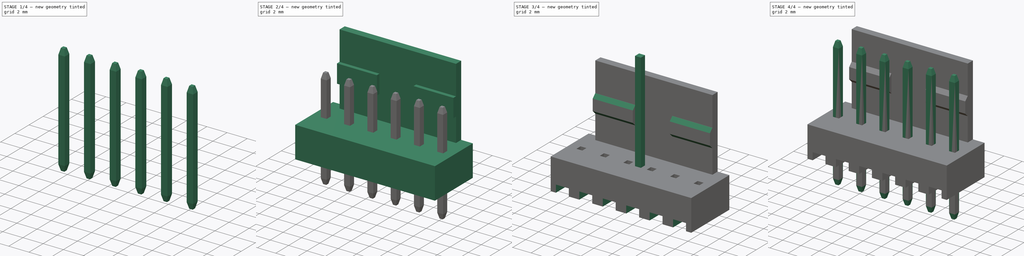
[diagram: build sequence overview — one tinted view per stage of 4, left to right]
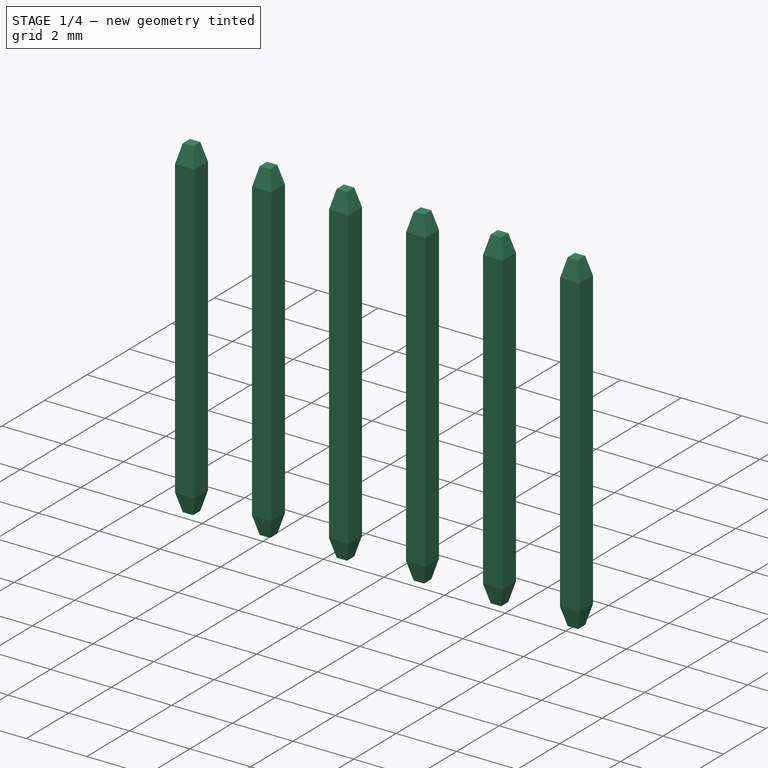
[diagram: stage 1 of 4 — iso view after this stage's code; geometry added in this stage tinted green]
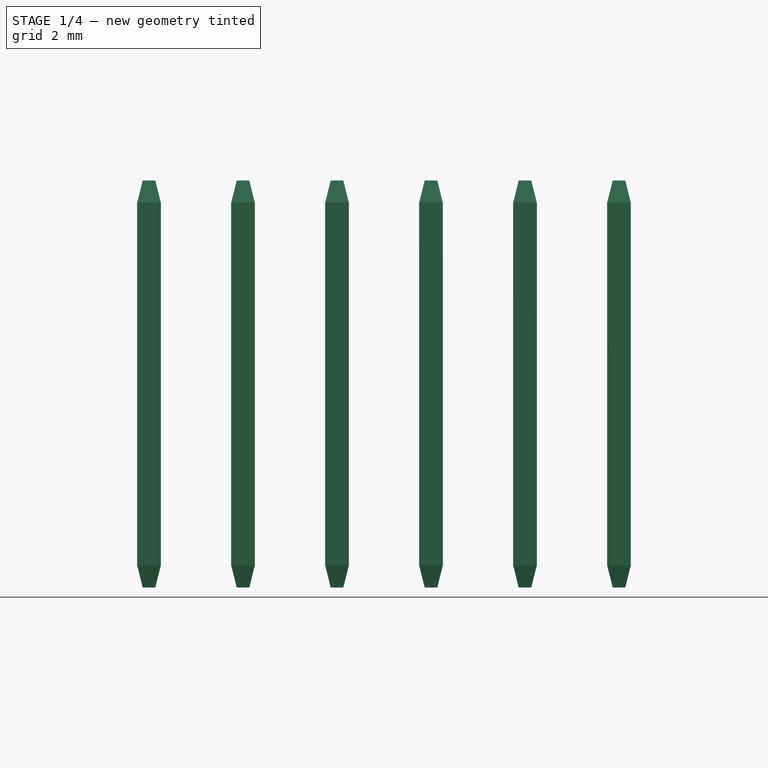
[diagram: stage 1 of 4 — front view after this stage's code; geometry added in this stage tinted green]
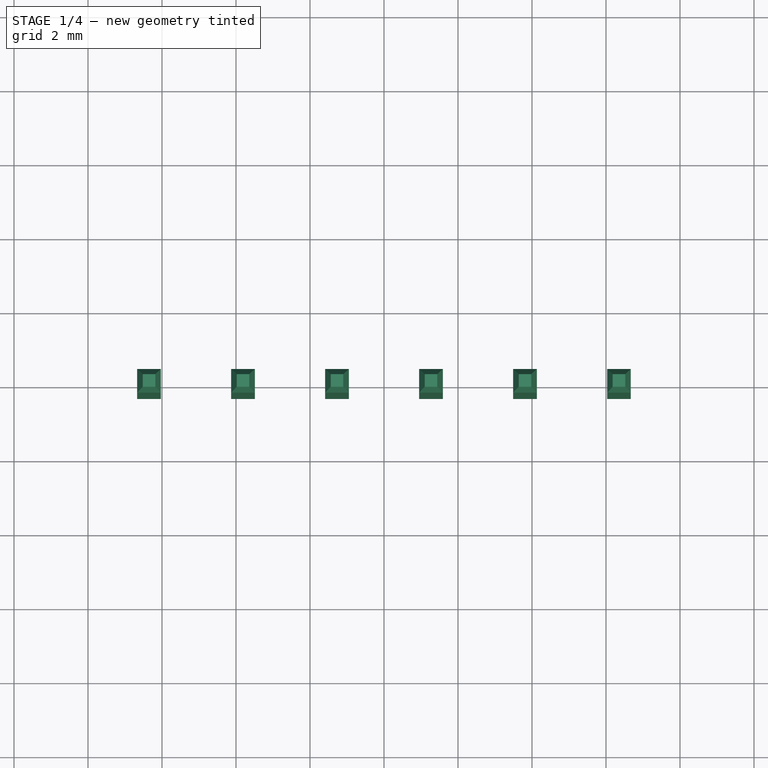
[diagram: stage 1 of 4 — top view after this stage's code; geometry added in this stage tinted green]
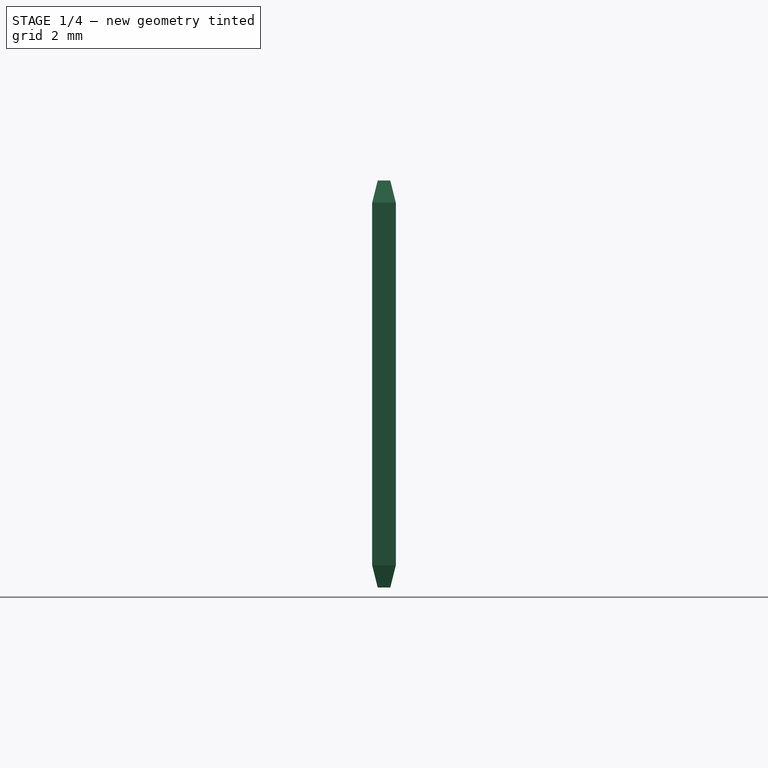
[diagram: stage 1 of 4 — right view after this stage's code; geometry added in this stage tinted green]
FCSTD DOCUMENT  (FreeCAD 0.16R6712 (Git))
Label: NS25-W6P
License: All rights reserved
LicenseURL: http://en.wikipedia.org/wiki/All_rights_reserved
objects: Sketcher::SketchObject×4, PartDesign::Pad×3, Part::Box×2, Part::Chamfer×2, Part::FeaturePython×2, PartDesign::Pocket×1, PartDesign::Chamfer×1, Part::Cut×1, Part::Compound×1
note: 21 computed .brp shape members not serialized (recipe doc carries the construction recipe); baked Part::Feature solids carry a one-line shape summary decoded from their .brp

FEATURE [Part::Box] Box001  label="Cube001"
  Height = 11
  Length = 0.64
  Placement = pos=(-0.32,-0.32,0) rot=(0,0,1;0rad)
  Width = 0.64
FEATURE [Part::Chamfer] Chamfer002  label="pin001"
  Base = -> Box001
  Edges = 8 edges: [Edge2 r1=0.6 r2=0.15,Edge4 r1=0.6 r2=0.15,Edge6 r1=0.6 r2=0.15,Edge8 r1=0.6 r2=0.15,Edge9 r1=0.6 r2=0.15,Edge10 r1=0.6 r2=0.15,Edge11 r1=0.6 r2=0.15,Edge12 r1=0.6 r2=0.15]
FEATURE [Part::FeaturePython] Array001  label="pins001"  # Draft array (typed FeaturePython)
  Angle = 360
  ArrayType = 0
  Axis = (0,0,1)
  Base = -> Chamfer002
  Center = (0,0,0)
  Fuse = false
  IntervalAxis = (0,0,0)
  IntervalX = (2.54,0,0)
  IntervalY = (0,2.54,0)
  IntervalZ = (0,0,0)
  NumberPolar = 1
  NumberX = 6
  NumberY = 1
  NumberZ = 1
  Placement = pos=(-6.35,0,-3.2) rot=(0,0,1;0rad)
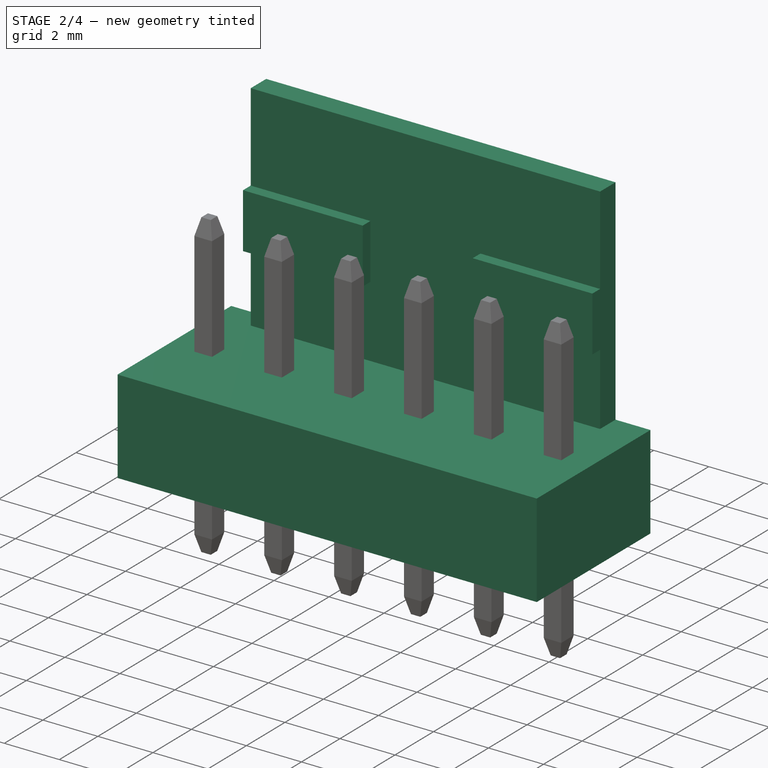
[diagram: stage 2 of 4 — iso view after this stage's code; geometry added in this stage tinted green]
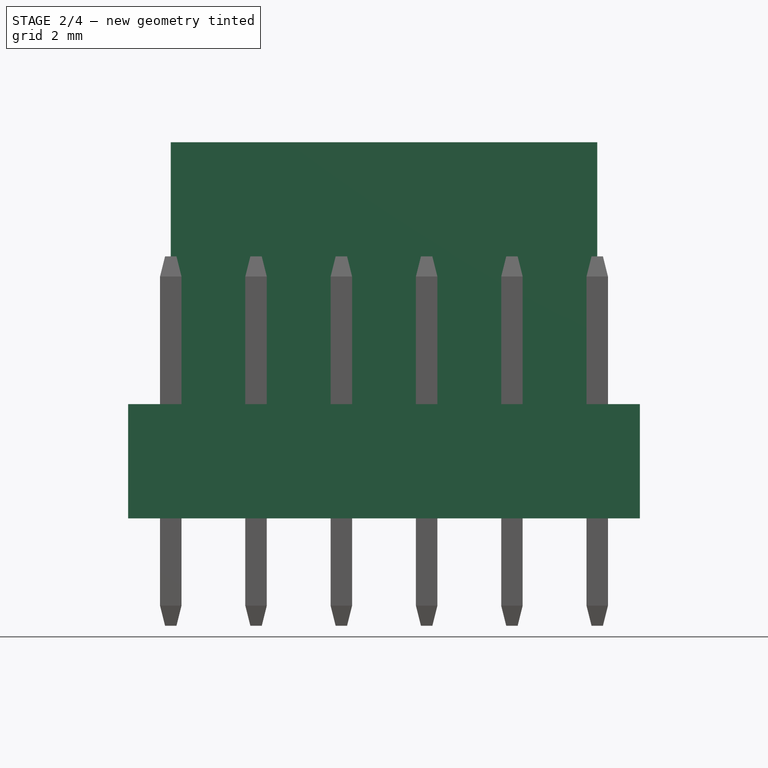
[diagram: stage 2 of 4 — front view after this stage's code; geometry added in this stage tinted green]
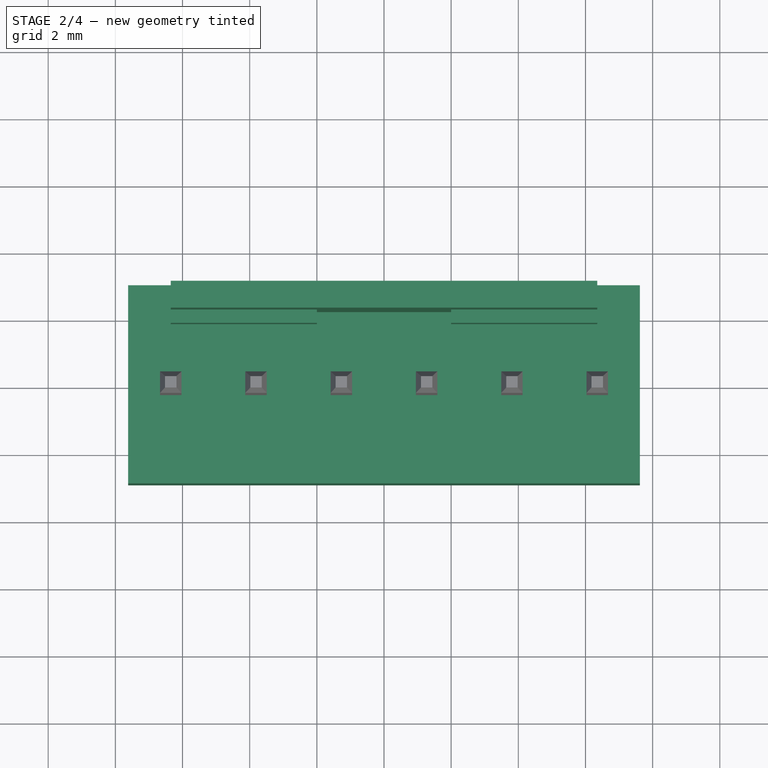
[diagram: stage 2 of 4 — top view after this stage's code; geometry added in this stage tinted green]
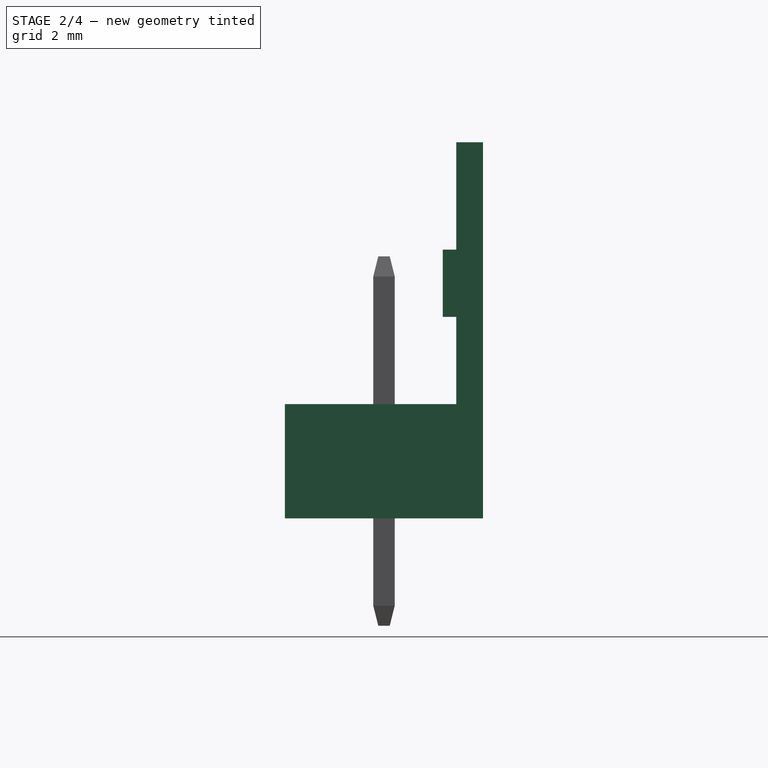
[diagram: stage 2 of 4 — right view after this stage's code; geometry added in this stage tinted green]
FEATURE [Sketcher::SketchObject] Sketch  label="podloze"
  sketch-geometry (4):
    g0: LineSegment StartX=-7.62 StartY=2.95 StartZ=0 EndX=7.62 EndY=2.95 EndZ=0
    g1: LineSegment StartX=7.62 StartY=2.95 StartZ=0 EndX=7.62 EndY=-2.95 EndZ=0
    g2: LineSegment StartX=7.62 StartY=-2.95 StartZ=0 EndX=-7.62 EndY=-2.95 EndZ=0
    g3: LineSegment StartX=-7.62 StartY=-2.95 StartZ=0 EndX=-7.62 EndY=2.95 EndZ=0
  constraints (12):
    c: Coincident(g0,g1)
    c: Coincident(g1,g2)
    c: Coincident(g2,g3)
    c: Coincident(g3,g0)
    c: Horizontal(g0)
    c: Horizontal(g2)
    c: Vertical(g1)
    c: Vertical(g3)
    c: Symmetric(g1,g2,g-2)
    c: Symmetric(g0,g1,g-1)
    c: DistanceY(g1,g1) = 5.9
    c: DistanceX(g2,g2) = 15.24
FEATURE [PartDesign::Pad] Pad  label="podloze001"
  Length = 3.4
  Length2 = 100
  Sketch = -> Sketch
  Type = 0
FEATURE [Sketcher::SketchObject] Sketch001  label="scianka"
  ExternalGeometry = -> [Pad]
  Placement = pos=(0,0,3.4) rot=(0,0,1;0rad)
  Support = -> Pad [Face6]
  sketch-geometry (4):
    g0: LineSegment StartX=-6.35 StartY=2.95 StartZ=0 EndX=6.35 EndY=2.95 EndZ=0
    g1: LineSegment StartX=6.35 StartY=2.95 StartZ=0 EndX=6.35 EndY=2.15 EndZ=0
    g2: LineSegment StartX=6.35 StartY=2.15 StartZ=0 EndX=-6.35 EndY=2.15 EndZ=0
    g3: LineSegment StartX=-6.35 StartY=2.15 StartZ=0 EndX=-6.35 EndY=2.95 EndZ=0
  constraints (12):
    c: Coincident(g0,g1)
    c: Coincident(g1,g2)
    c: Coincident(g2,g3)
    c: Coincident(g3,g0)
    c: Horizontal(g0)
    c: Horizontal(g2)
    c: Vertical(g1)
    c: Vertical(g3)
    c: PointOnObject(g0,g-3)
    c: Symmetric(g0,g0,g-2)
    c: DistanceY(g1,g1) = 0.8
    c: DistanceX(g0,g0) = 12.7
FEATURE [PartDesign::Pad] Pad001
  Length = 7.8
  Length2 = 100
  Sketch = -> Sketch001
  Type = 0
FEATURE [Sketcher::SketchObject] Sketch002
  ExternalGeometry = -> [Pad001]
  Placement = pos=(0,2.15,0) rot=(1,0,0;1.5708rad)
  Support = -> Pad001 [Face9]
  sketch-geometry (8):
    g0: LineSegment StartX=-2 StartY=8 StartZ=0 EndX=-6.35 EndY=8 EndZ=0
    g1: LineSegment StartX=-6.35 StartY=8 StartZ=0 EndX=-6.35 EndY=6 EndZ=0
    g2: LineSegment StartX=-6.35 StartY=6 StartZ=0 EndX=-2 EndY=6 EndZ=0
    g3: LineSegment StartX=-2 StartY=6 StartZ=0 EndX=-2 EndY=8 EndZ=0
    g4: LineSegment StartX=2 StartY=8 StartZ=0 EndX=6.35 EndY=8 EndZ=0
    g5: LineSegment StartX=6.35 StartY=8 StartZ=0 EndX=6.35 EndY=6 EndZ=0
    g6: LineSegment StartX=6.35 StartY=6 StartZ=0 EndX=2 EndY=6 EndZ=0
    g7: LineSegment StartX=2 StartY=6 StartZ=0 EndX=2 EndY=8 EndZ=0
  constraints (23):
    c: Coincident(g0,g1)
    c: Coincident(g1,g2)
    c: Coincident(g2,g3)
    c: Coincident(g3,g0)
    c: Horizontal(g0)
    c: Horizontal(g2)
    c: Vertical(g1)
    c: Vertical(g3)
    c: Coincident(g4,g5)
    c: Coincident(g5,g6)
    c: Coincident(g6,g7)
    c: Coincident(g7,g4)
    c: Horizontal(g4)
    c: Horizontal(g6)
    c: Vertical(g5)
    c: Vertical(g7)
    c: Symmetric(g2,g6,g-2)
    c: Equal(g3,g7)
    c: Equal(g6,g2)
    c: DistanceY(g1,g1) = 2
    c: DistanceY(g-1,g5) = 6
    c: PointOnObject(g4,g-3)
    c: DistanceX(g0,g4) = 4
FEATURE [PartDesign::Pad] Pad002
  Length = 0.4
  Length2 = 100
  Sketch = -> Sketch002
  Type = 0
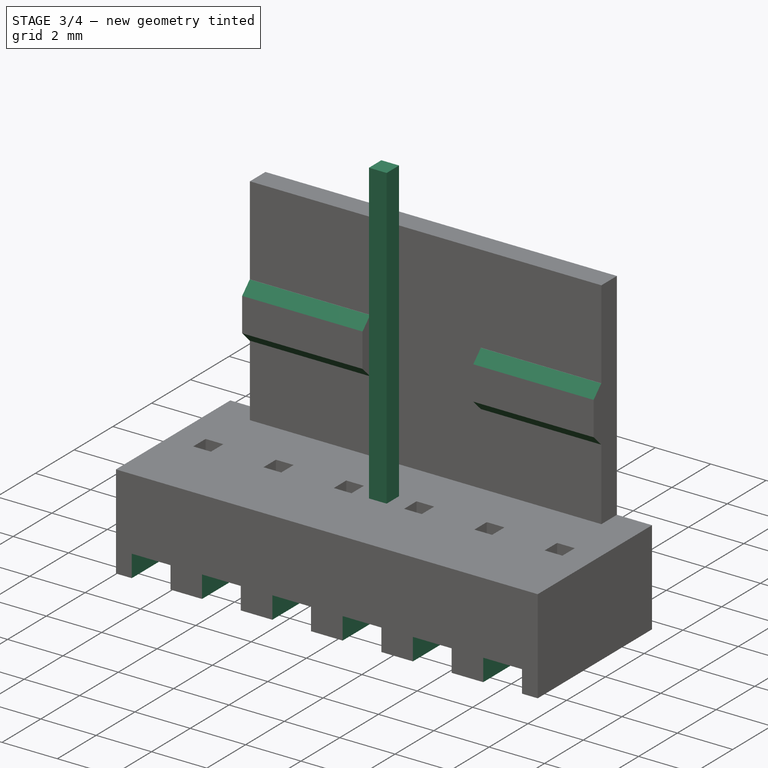
[diagram: stage 3 of 4 — iso view after this stage's code; geometry added in this stage tinted green]
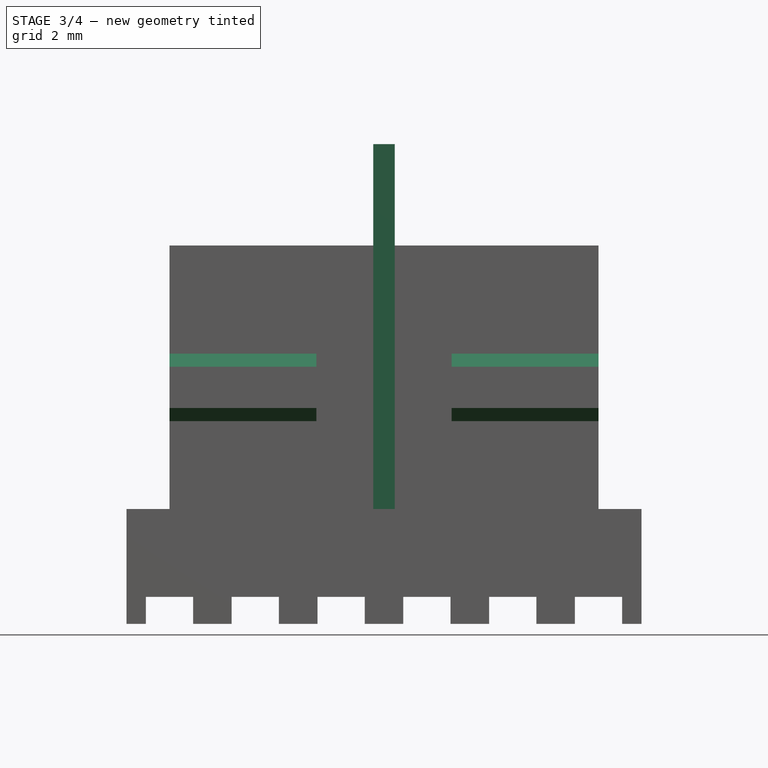
[diagram: stage 3 of 4 — front view after this stage's code; geometry added in this stage tinted green]
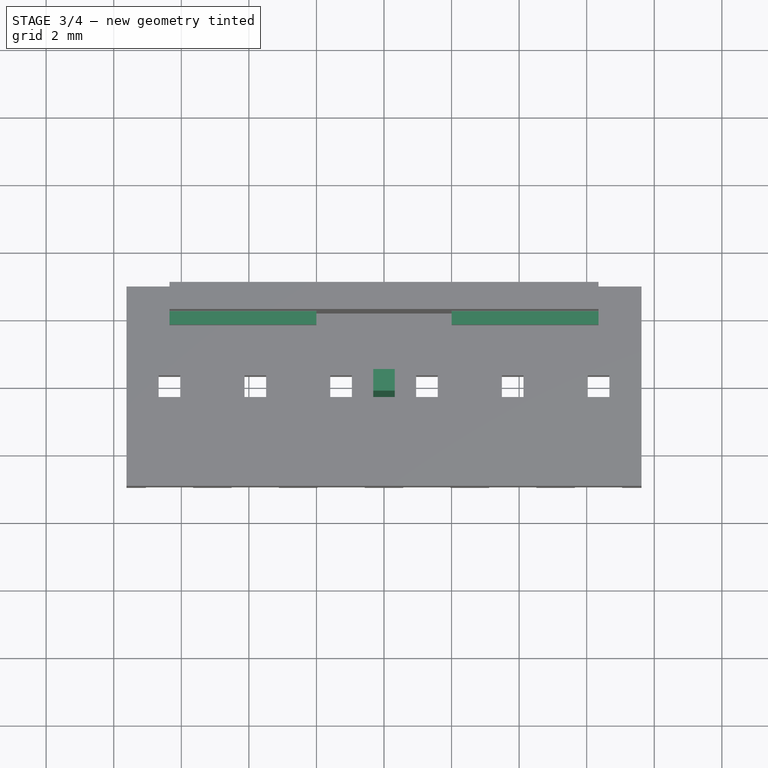
[diagram: stage 3 of 4 — top view after this stage's code; geometry added in this stage tinted green]
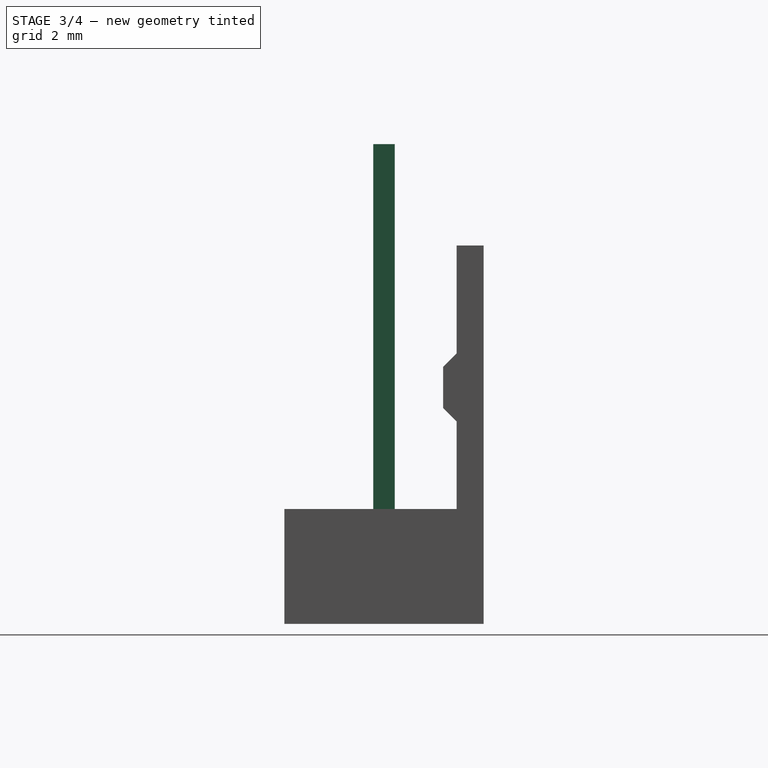
[diagram: stage 3 of 4 — right view after this stage's code; geometry added in this stage tinted green]
FEATURE [Part::Box] Box  label="Cube"
  Height = 14.2
  Length = 0.64
  Placement = pos=(-0.32,-0.32,0) rot=(0,0,1;0rad)
  Width = 0.64
FEATURE [Sketcher::SketchObject] Sketch003  label="wyciecia_spodu"
  Placement = pos=(0,0,0) rot=(1,0,0;3.14159rad)
  Support = -> Pad002 [Face4]
  sketch-geometry (30):
    g0: LineSegment StartX=-1.97 StartY=2.95 StartZ=0 EndX=-0.57 EndY=2.95 EndZ=0
    g1: LineSegment StartX=-0.57 StartY=2.95 StartZ=0 EndX=-0.57 EndY=-2.95 EndZ=0
    g2: LineSegment StartX=-0.57 StartY=-2.95 StartZ=0 EndX=-1.97 EndY=-2.95 EndZ=0
    g3: LineSegment StartX=-1.97 StartY=-2.95 StartZ=0 EndX=-1.97 EndY=2.95 EndZ=0
    g4: LineSegment [constr] StartX=-1.27 StartY=2.95 StartZ=0 EndX=-1.27 EndY=-2.95 EndZ=0
    g5: LineSegment StartX=-4.51 StartY=2.95 StartZ=0 EndX=-3.11 EndY=2.95 EndZ=0
    g6: LineSegment StartX=-3.11 StartY=2.95 StartZ=0 EndX=-3.11 EndY=-2.95 EndZ=0
    g7: LineSegment StartX=-3.11 StartY=-2.95 StartZ=0 EndX=-4.51 EndY=-2.95 EndZ=0
    g8: LineSegment StartX=-4.51 StartY=-2.95 StartZ=0 EndX=-4.51 EndY=2.95 EndZ=0
    g9: LineSegment [constr] StartX=-3.81 StartY=2.95 StartZ=0 EndX=-3.81 EndY=-2.95 EndZ=0
    g10: LineSegment StartX=-7.05 StartY=2.95 StartZ=0 EndX=-5.65 EndY=2.95 EndZ=0
    g11: LineSegment StartX=-5.65 StartY=2.95 StartZ=0 EndX=-5.65 EndY=-2.95 EndZ=0
    g12: LineSegment StartX=-5.65 StartY=-2.95 StartZ=0 EndX=-7.05 EndY=-2.95 EndZ=0
    g13: LineSegment StartX=-7.05 StartY=-2.95 StartZ=0 EndX=-7.05 EndY=2.95 EndZ=0
    g14: LineSegment [constr] StartX=-6.35 StartY=2.96069 StartZ=0 EndX=-6.35 EndY=-2.93931 EndZ=0
    g15: LineSegment StartX=5.65 StartY=2.95 StartZ=0 EndX=7.05 EndY=2.95 EndZ=0
    g16: LineSegment StartX=7.05 StartY=2.95 StartZ=0 EndX=7.05 EndY=-2.95 EndZ=0
    g17: LineSegment StartX=7.05 StartY=-2.95 StartZ=0 EndX=5.65 EndY=-2.95 EndZ=0
    g18: LineSegment StartX=5.65 StartY=-2.95 StartZ=0 EndX=5.65 EndY=2.95 EndZ=0
    g19: LineSegment [constr] StartX=6.35 StartY=2.92113 StartZ=0 EndX=6.35 EndY=-2.97887 EndZ=0
    g20: LineSegment StartX=3.11 StartY=2.95 StartZ=0 EndX=4.51 EndY=2.95 EndZ=0
    g21: LineSegment StartX=4.51 StartY=2.95 StartZ=0 EndX=4.51 EndY=-2.95 EndZ=0
    g22: LineSegment StartX=4.51 StartY=-2.95 StartZ=0 EndX=3.11 EndY=-2.95 EndZ=0
    g23: LineSegment StartX=3.11 StartY=-2.95 StartZ=0 EndX=3.11 EndY=2.95 EndZ=0
    g24: LineSegment [constr] StartX=3.81 StartY=2.92113 StartZ=0 EndX=3.81 EndY=-2.97887 EndZ=0
    g25: LineSegment StartX=0.57 StartY=2.95 StartZ=0 EndX=1.97 EndY=2.95 EndZ=0
    g26: LineSegment StartX=1.97 StartY=2.95 StartZ=0 EndX=1.97 EndY=-2.95 EndZ=0
    g27: LineSegment StartX=1.97 StartY=-2.95 StartZ=0 EndX=0.57 EndY=-2.95 EndZ=0
    g28: LineSegment StartX=0.57 StartY=-2.95 StartZ=0 EndX=0.57 EndY=2.95 EndZ=0
    g29: LineSegment [constr] StartX=1.27 StartY=2.95 StartZ=0 EndX=1.27 EndY=-2.96818 EndZ=0
  constraints (84):
    c: Coincident(g0,g1)
    c: Coincident(g1,g2)
    c: Coincident(g2,g3)
    c: Coincident(g3,g0)
    c: Horizontal(g0)
    c: Horizontal(g2)
    c: Vertical(g1)
    c: Vertical(g3)
    c: Vertical(g4)
    c: Symmetric(g1,g2,g4)
    c: DistanceX(g4,g-1) = 1.27
    c: Coincident(g5,g6)
    c: Coincident(g6,g7)
    c: Coincident(g7,g8)
    c: Coincident(g8,g5)
    c: Horizontal(g5)
    c: Horizontal(g7)
    c: Vertical(g6)
    c: Vertical(g8)
    c: Vertical(g9)
    c: Symmetric(g6,g7,g9)
    c: Coincident(g10,g11)
    c: Coincident(g11,g12)
    c: Coincident(g12,g13)
    c: Coincident(g13,g10)
    c: Horizontal(g10)
    c: Horizontal(g12)
    c: Vertical(g11)
    c: Vertical(g13)
    c: Vertical(g14)
    c: Symmetric(g11,g12,g14)
    c: DistanceX(g9,g4) = 2.54
    c: DistanceX(g14,g9) = 2.54
    c: Coincident(g15,g16)
    c: Coincident(g16,g17)
    c: Coincident(g17,g18)
    c: Coincident(g18,g15)
    c: Horizontal(g15)
    c: Horizontal(g17)
    c: Vertical(g16)
    c: Vertical(g18)
    c: Vertical(g19)
    c: Symmetric(g16,g17,g19)
    c: Coincident(g20,g21)
    c: Coincident(g21,g22)
    c: Coincident(g22,g23)
    c: Coincident(g23,g20)
    c: Horizontal(g20)
    c: Horizontal(g22)
    c: Vertical(g21)
    c: Vertical(g23)
    c: Vertical(g24)
    c: Symmetric(g21,g22,g24)
    c: Coincident(g25,g26)
    c: Coincident(g26,g27)
    c: Coincident(g27,g28)
    c: Coincident(g28,g25)
    c: Horizontal(g25)
    c: Horizontal(g27)
    c: Vertical(g26)
    c: Vertical(g28)
    c: Vertical(g29)
    c: Symmetric(g26,g27,g29)
    c: DistanceX(g24,g19) = 2.54
    c: DistanceX(g29,g24) = 2.54
    c: DistanceX(g-1,g29) = 1.27
    c: DistanceX(g15,g15) = 1.4
    c: Equal(g12,g7)
    c: Equal(g7,g2)
    c: Equal(g2,g27)
    c: Equal(g27,g22)
    c: Equal(g22,g17)
    c: Equal(g13,g8)
    c: Equal(g8,g3)
    c: Equal(g3,g28)
    c: Equal(g28,g23)
    c: Equal(g23,g18)
    c: Symmetric(g10,g11,g-1)
    c: Symmetric(g5,g6,g-1)
    c: Symmetric(g0,g1,g-1)
    c: Symmetric(g25,g26,g-1)
    c: Symmetric(g20,g21,g-1)
    c: Symmetric(g15,g16,g-1)
    c: DistanceY(g16,g16) = 5.9
FEATURE [PartDesign::Pocket] Pocket  label="spod_wyciecie"
  Length = 0.8
  Sketch = -> Sketch003
  Type = 0
FEATURE [PartDesign::Chamfer] Chamfer001  label="zaokraglone_blokady"
  Base = -> Pocket [Edge115,Edge111,Edge117,Edge122]
  Size = 0.39
FEATURE [Part::Cut] Cut  label="gniazdo-piny"
  Base = -> Chamfer001
  Tool = -> Array001
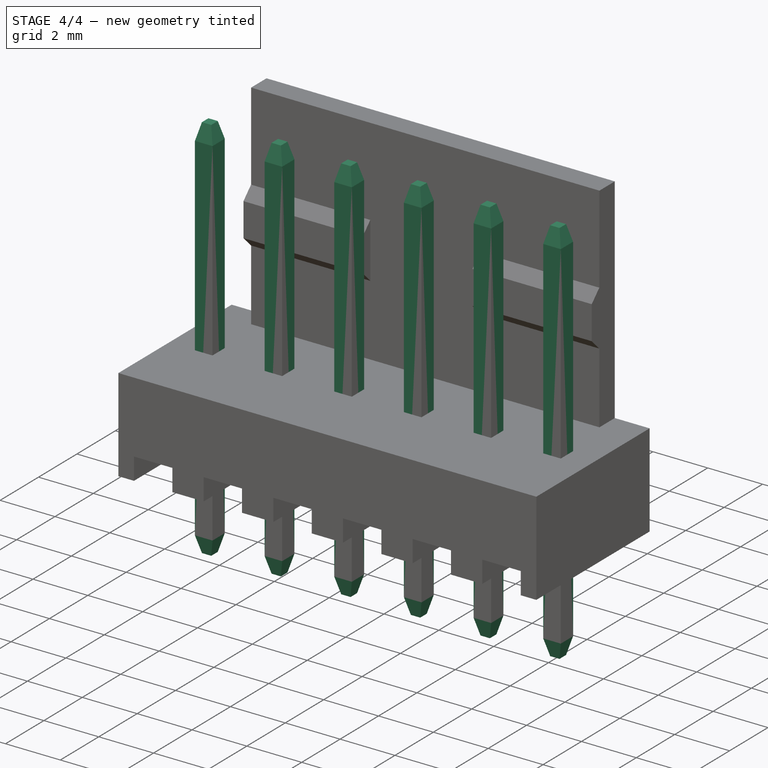
[diagram: stage 4 of 4 — iso view after this stage's code; geometry added in this stage tinted green]
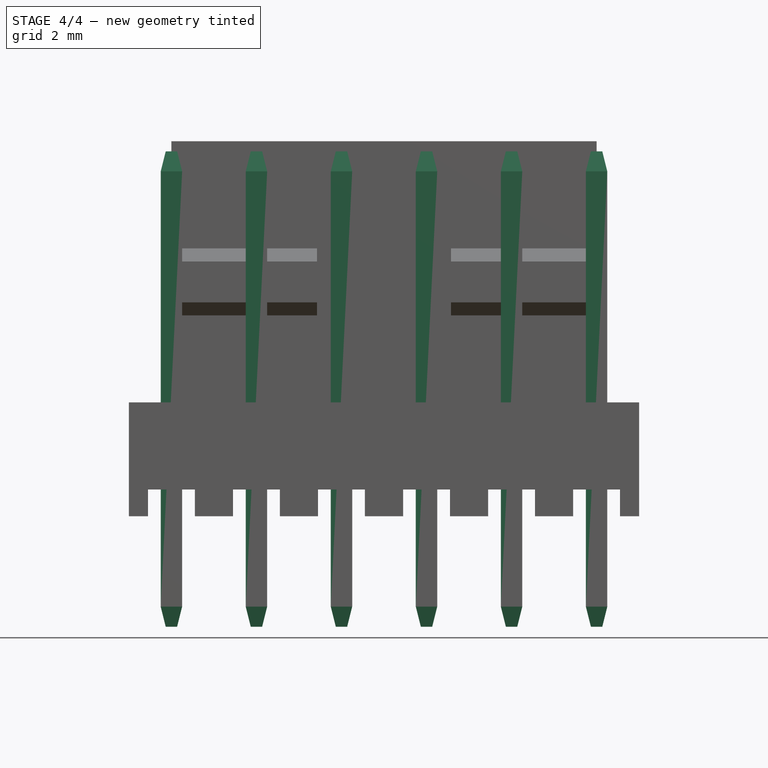
[diagram: stage 4 of 4 — front view after this stage's code; geometry added in this stage tinted green]
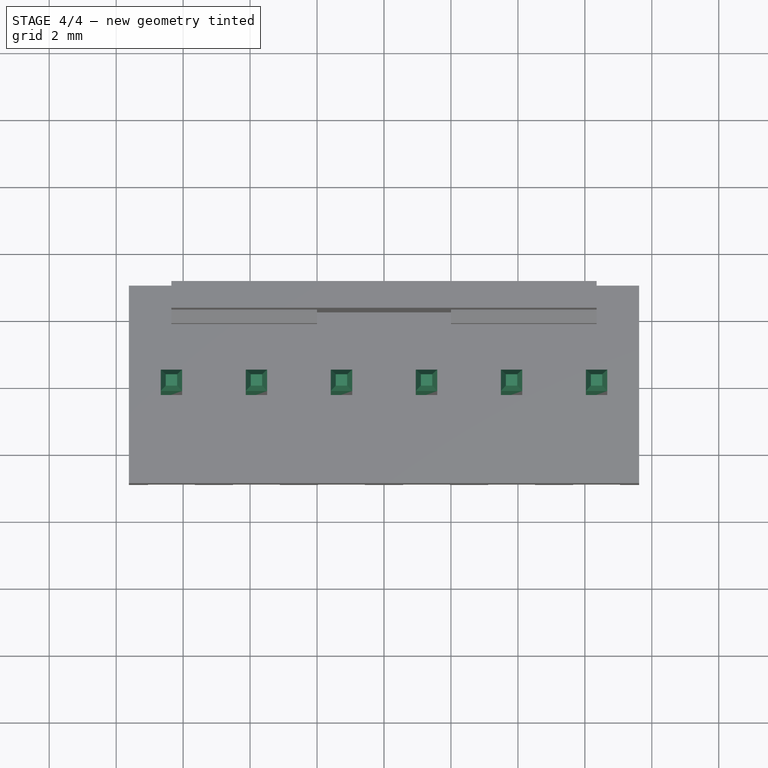
[diagram: stage 4 of 4 — top view after this stage's code; geometry added in this stage tinted green]
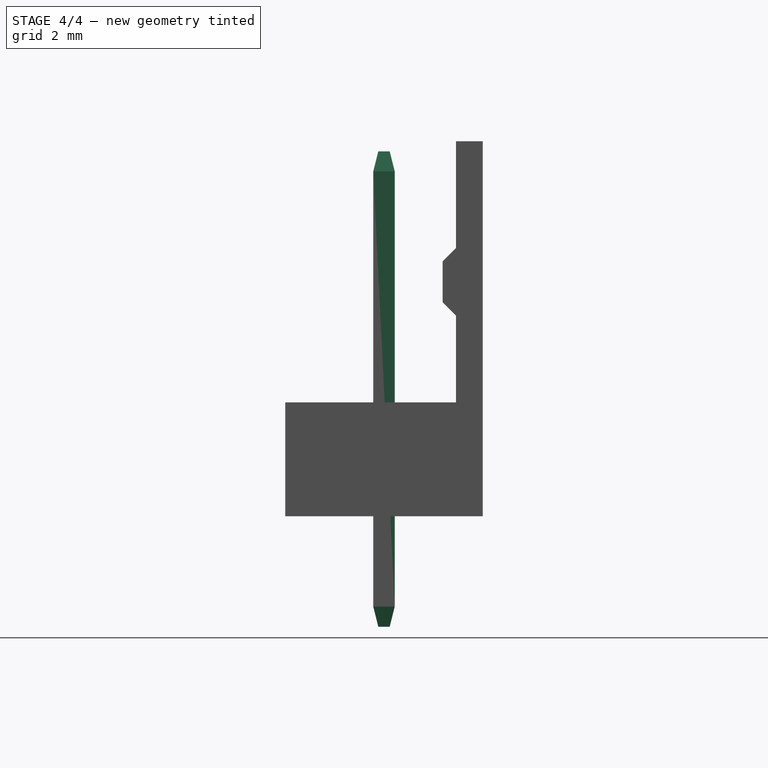
[diagram: stage 4 of 4 — right view after this stage's code; geometry added in this stage tinted green]
FEATURE [Part::Chamfer] Chamfer  label="pin"
  Base = -> Box
  Edges = 8 edges: [Edge2 r1=0.6 r2=0.15,Edge4 r1=0.6 r2=0.15,Edge6 r1=0.6 r2=0.15,Edge8 r1=0.6 r2=0.15,Edge9 r1=0.6 r2=0.15,Edge10 r1=0.6 r2=0.15,Edge11 r1=0.6 r2=0.15,Edge12 r1=0.6 r2=0.15]
FEATURE [Part::FeaturePython] Array  label="pins"  # Draft array (typed FeaturePython)
  Angle = 360
  ArrayType = 0
  Axis = (0,0,1)
  Base = -> Chamfer
  Center = (0,0,0)
  Fuse = false
  IntervalAxis = (0,0,0)
  IntervalX = (2.54,0,0)
  IntervalY = (0,2.54,0)
  IntervalZ = (0,0,0)
  NumberPolar = 1
  NumberX = 6
  NumberY = 1
  NumberZ = 1
  Placement = pos=(-6.35,0,-3.3) rot=(0,0,1;0rad)
FEATURE [Part::Compound] Compound  label="NS25-W6P"
  Links = -> [Cut,Array]
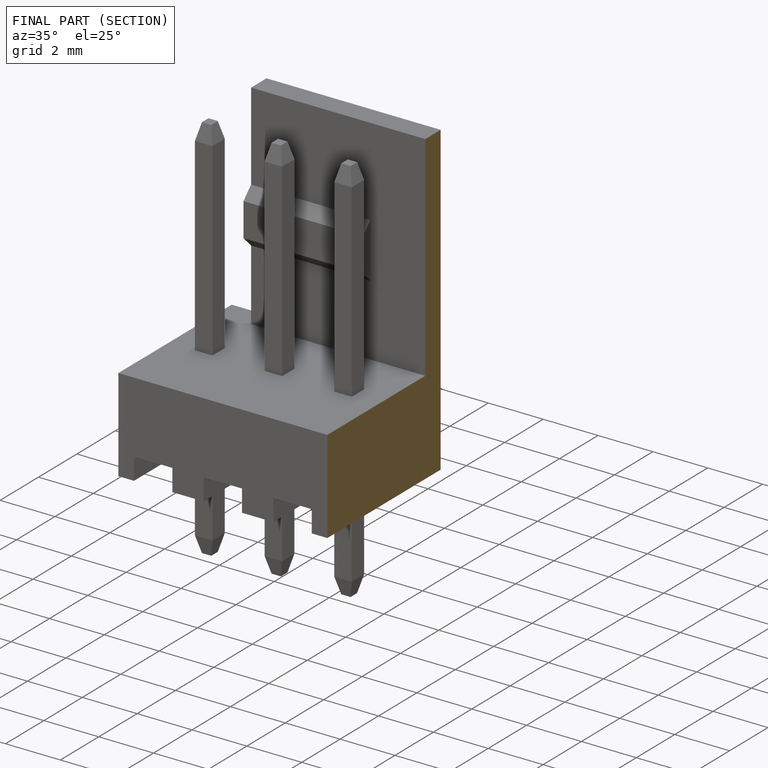
[diagram: finished part — half-section view (interior)]
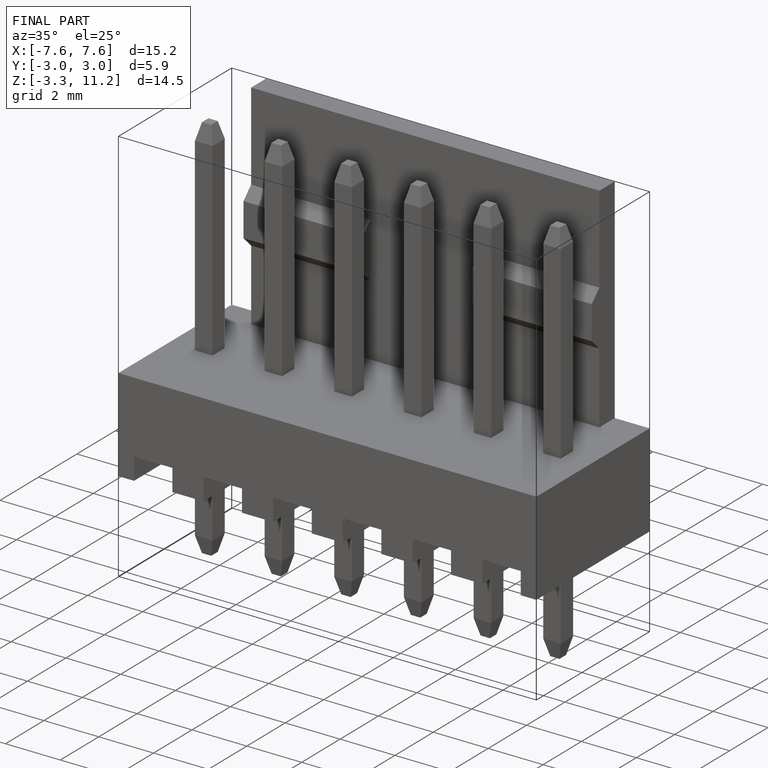
[diagram: finished part — iso view with bounding-box wireframe]
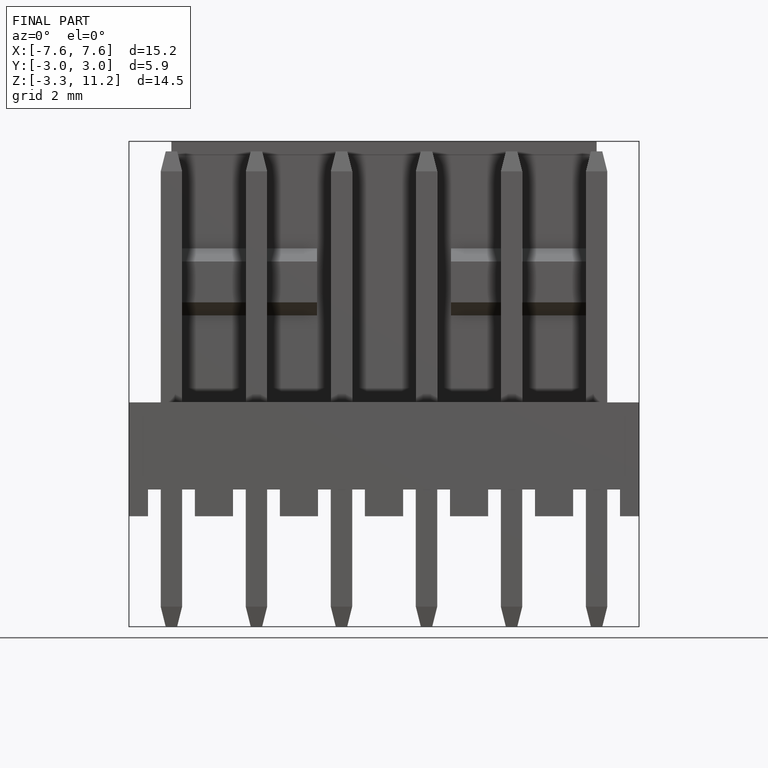
[diagram: finished part — front view with bounding-box wireframe]
